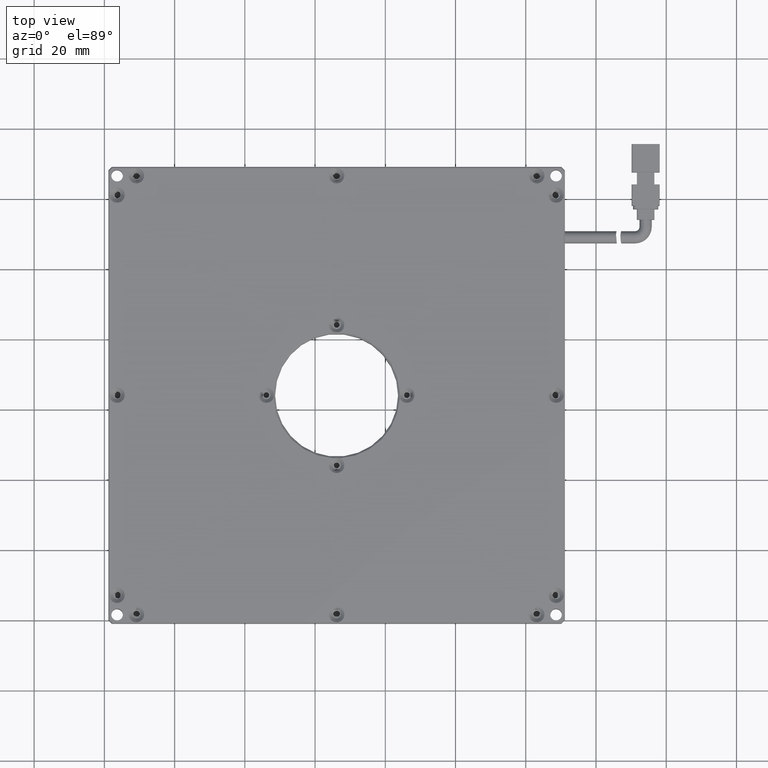
[diagram: clean part render]
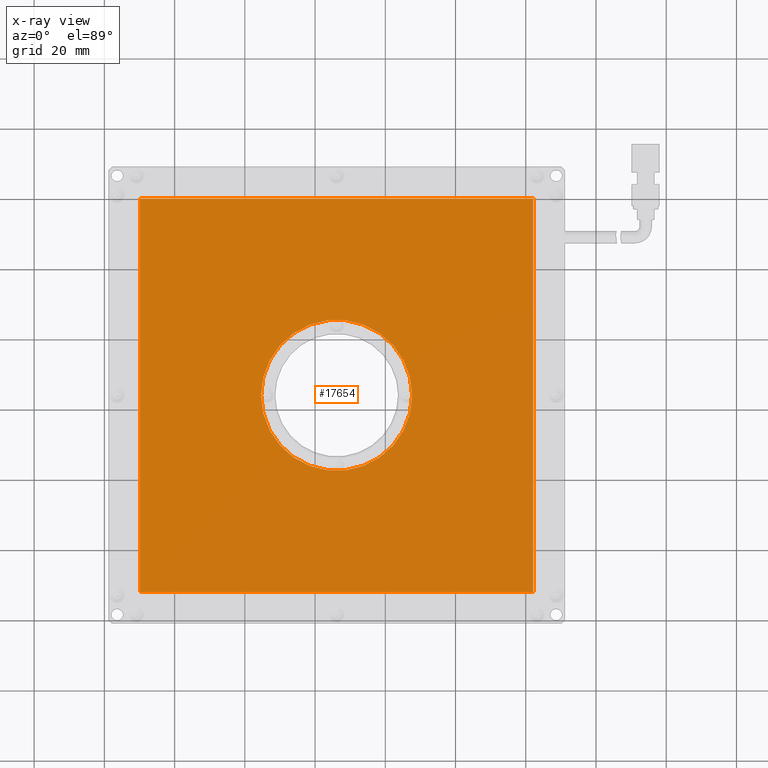
[diagram: x-ray — body ghosted, one internal face saturated and labeled with its STEP entity id]
A machine part, top view, then the same camera in x-ray: the body is ghosted and one INTERNAL B-rep face — a face not visible from any outside direction — is saturated and labeled: STEP entity #17654.
In plain terms, the highlighted planar face has unit normal (0, 0, -1).
Its self-contained STEP definition (entity closure, byte-faithful):
#191 = DIRECTION ( 'NONE',  ( 0.0000000000000000000, 1.000000000000000000, 0.0000000000000000000 ) ) ;
#203 = CIRCLE ( 'NONE', #10590, 21.50000000000000000 ) ;
#687 = DIRECTION ( 'NONE',  ( -1.000000000000000000, 0.0000000000000000000, 0.0000000000000000000 ) ) ;
#878 = EDGE_CURVE ( 'NONE', #19562, #16724, #15064, .T. ) ;
#1017 = ORIENTED_EDGE ( 'NONE', *, *, #1356, .F. ) ;
#1305 = ORIENTED_EDGE ( 'NONE', *, *, #17407, .F. ) ;
#1356 = EDGE_CURVE ( 'NONE', #16688, #4470, #11141, .T. ) ;
#2205 = EDGE_CURVE ( 'NONE', #3413, #19562, #15367, .T. ) ;
#2304 = EDGE_CURVE ( 'NONE', #16724, #16238, #13169, .T. ) ;
#2448 = DIRECTION ( 'NONE',  ( 0.0000000000000000000, 0.0000000000000000000, 1.000000000000000000 ) ) ;
#3413 = VERTEX_POINT ( 'NONE', #10495 ) ;
#3802 = DIRECTION ( 'NONE',  ( -0.0000000000000000000, -1.000000000000000000, -0.0000000000000000000 ) ) ;
#4152 = ORIENTED_EDGE ( 'NONE', *, *, #878, .F. ) ;
#4428 = FACE_OUTER_BOUND ( 'NONE', #19453, .T. ) ;
#4470 = VERTEX_POINT ( 'NONE', #11344 ) ;
#4488 = EDGE_CURVE ( 'NONE', #4470, #16688, #203, .T. ) ;
#4993 = CARTESIAN_POINT ( 'NONE',  ( -29.87092592592589200, -31.94055555555555500, 2.000000000000000000 ) ) ;
#5090 = VECTOR ( 'NONE', #6573, 1000.000000000000000 ) ;
#5343 = VECTOR ( 'NONE', #17108, 1000.000000000000000 ) ;
#6156 = PLANE ( 'NONE',  #18896 ) ;
#6386 = CARTESIAN_POINT ( 'NONE',  ( -29.87092592592589200, 80.05944444444445200, 2.000000000000000000 ) ) ;
#6437 = ORIENTED_EDGE ( 'NONE', *, *, #2205, .F. ) ;
#6573 = DIRECTION ( 'NONE',  ( -1.000000000000000000, 0.0000000000000000000, -0.0000000000000000000 ) ) ;
#7656 = DIRECTION ( 'NONE',  ( -1.000000000000000000, 0.0000000000000000000, -0.0000000000000000000 ) ) ;
#7730 = DIRECTION ( 'NONE',  ( 0.0000000000000000000, 0.0000000000000000000, -1.000000000000000000 ) ) ;
#7867 = FACE_BOUND ( 'NONE', #15013, .T. ) ;
#8081 = CARTESIAN_POINT ( 'NONE',  ( -29.87092592592589200, -31.94055555555555500, 2.000000000000000000 ) ) ;
#10131 = DIRECTION ( 'NONE',  ( 0.0000000000000000000, 0.0000000000000000000, 1.000000000000000000 ) ) ;
#10165 = CARTESIAN_POINT ( 'NONE',  ( 82.12907407407411100, 80.05944444444445200, 2.000000000000000000 ) ) ;
#10495 = CARTESIAN_POINT ( 'NONE',  ( -29.87092592592589200, 80.05944444444445200, 2.000000000000000000 ) ) ;
#10590 = AXIS2_PLACEMENT_3D ( 'NONE', #11858, #2448, #13437 ) ;
#10735 = CARTESIAN_POINT ( 'NONE',  ( 82.12907407407411100, -31.94055555555555500, 2.000000000000000000 ) ) ;
#10765 = CARTESIAN_POINT ( 'NONE',  ( -29.87092592592589200, 80.05944444444445200, 2.000000000000000000 ) ) ;
#11141 = CIRCLE ( 'NONE', #19598, 21.50000000000000000 ) ;
#11344 = CARTESIAN_POINT ( 'NONE',  ( 47.62907407407411900, 24.05944444444444800, 2.000000000000000000 ) ) ;
#11858 = CARTESIAN_POINT ( 'NONE',  ( 26.12907407407411900, 24.05944444444444500, 2.000000000000000000 ) ) ;
#13169 = LINE ( 'NONE', #4993, #5090 ) ;
#13437 = DIRECTION ( 'NONE',  ( -1.000000000000000000, 0.0000000000000000000, 0.0000000000000000000 ) ) ;
#13749 = ORIENTED_EDGE ( 'NONE', *, *, #4488, .F. ) ;
#13761 = VECTOR ( 'NONE', #191, 1000.000000000000000 ) ;
#14680 = CARTESIAN_POINT ( 'NONE',  ( 26.12907407407411900, 24.05944444444444500, 2.000000000000000000 ) ) ;
#15013 = EDGE_LOOP ( 'NONE', ( #1017, #13749 ) ) ;
#15064 = LINE ( 'NONE', #17793, #16290 ) ;
#15367 = LINE ( 'NONE', #15536, #5343 ) ;
#15536 = CARTESIAN_POINT ( 'NONE',  ( -29.87092592592589200, 80.05944444444445200, 2.000000000000000000 ) ) ;
#16238 = VERTEX_POINT ( 'NONE', #8081 ) ;
#16290 = VECTOR ( 'NONE', #3802, 1000.000000000000000 ) ;
#16688 = VERTEX_POINT ( 'NONE', #19890 ) ;
#16724 = VERTEX_POINT ( 'NONE', #10735 ) ;
#17108 = DIRECTION ( 'NONE',  ( 1.000000000000000000, -0.0000000000000000000, 0.0000000000000000000 ) ) ;
#17407 = EDGE_CURVE ( 'NONE', #16238, #3413, #17946, .T. ) ;
#17654 = ADVANCED_FACE ( 'NONE', ( #4428, #7867 ), #6156, .F. ) ;
#17793 = CARTESIAN_POINT ( 'NONE',  ( 82.12907407407411100, 80.05944444444445200, 2.000000000000000000 ) ) ;
#17946 = LINE ( 'NONE', #6386, #13761 ) ;
#18896 = AXIS2_PLACEMENT_3D ( 'NONE', #10765, #7730, #7656 ) ;
#19453 = EDGE_LOOP ( 'NONE', ( #19610, #4152, #6437, #1305 ) ) ;
#19562 = VERTEX_POINT ( 'NONE', #10165 ) ;
#19598 = AXIS2_PLACEMENT_3D ( 'NONE', #14680, #10131, #687 ) ;
#19610 = ORIENTED_EDGE ( 'NONE', *, *, #2304, .F. ) ;
#19890 = CARTESIAN_POINT ( 'NONE',  ( 4.629074074074115000, 24.05944444444444500, 2.000000000000000000 ) ) ;